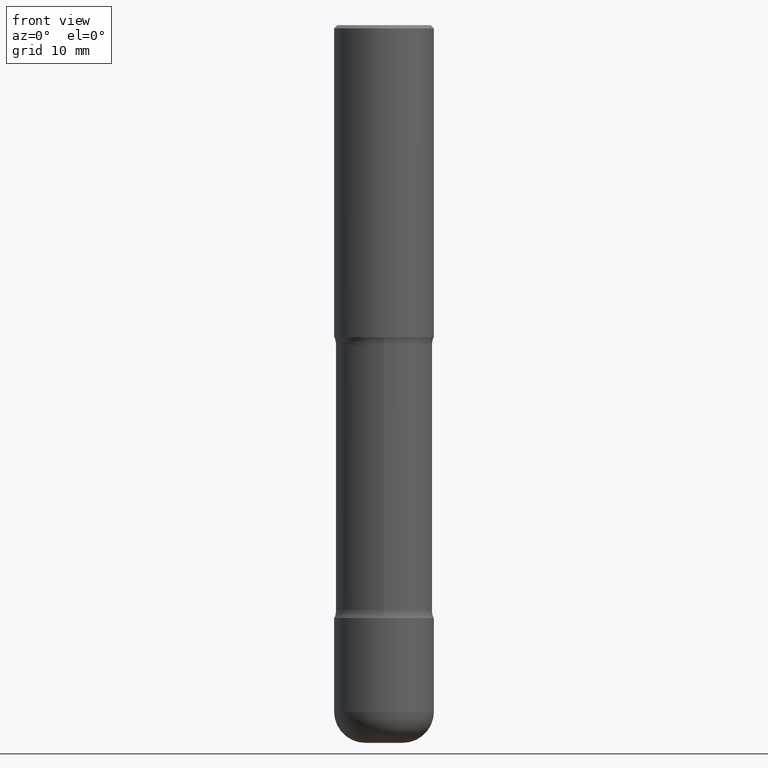
[diagram: clean part render]
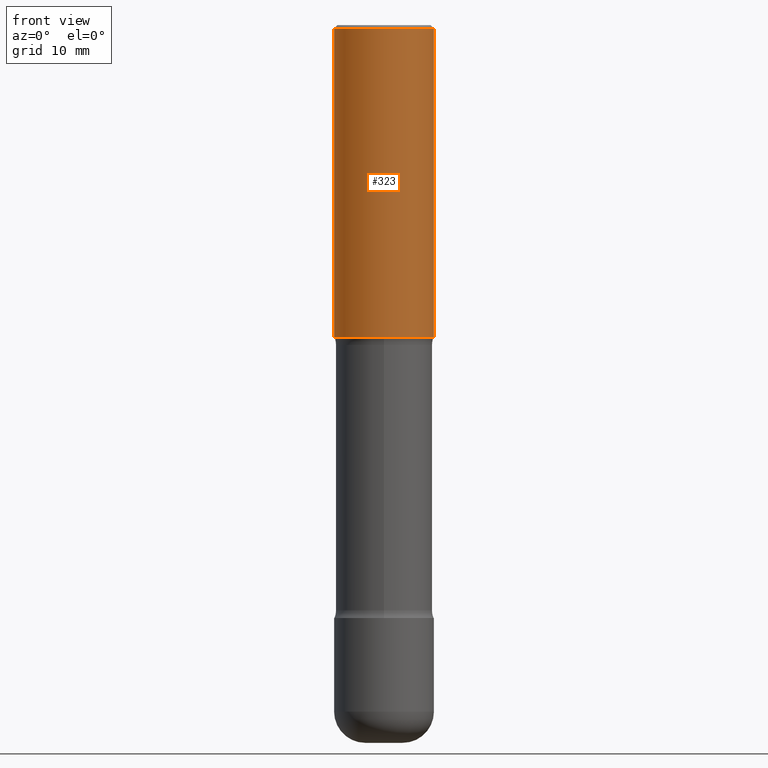
[diagram: same view with one face highlighted and labeled with its STEP entity id]
A machine part, front view. The second image highlights one B-rep face of the part: STEP entity #323.
In plain terms, the highlighted cylindrical surface (partial cylindrical patch) has radius 7.9997 mm, axis along (-0, 0, 1).
Its self-contained STEP definition (entity closure, byte-faithful):
#1 = CIRCLE ( 'NONE', #430, 0.3149500000000001743 ) ;
#23 = ORIENTED_EDGE ( 'NONE', *, *, #136, .T. ) ;
#43 = DIRECTION ( 'NONE',  ( -2.445468806185136597E-29, 3.491481338843145583E-15, 1.000000000000000000 ) ) ;
#65 = AXIS2_PLACEMENT_3D ( 'NONE', #184, #269, #187 ) ;
#72 = EDGE_CURVE ( 'NONE', #135, #142, #508, .T. ) ;
#80 = CARTESIAN_POINT ( 'NONE',  ( 0.3149499999999998967, -2.230543471175006266E-15, -0.02000000000000006981 ) ) ;
#104 = EDGE_LOOP ( 'NONE', ( #352, #23, #252, #264 ) ) ;
#107 = FACE_OUTER_BOUND ( 'NONE', #104, .T. ) ;
#118 = VERTEX_POINT ( 'NONE', #507 ) ;
#135 = VERTEX_POINT ( 'NONE', #202 ) ;
#136 = EDGE_CURVE ( 'NONE', #146, #118, #1, .T. ) ;
#142 = VERTEX_POINT ( 'NONE', #80 ) ;
#146 = VERTEX_POINT ( 'NONE', #382 ) ;
#165 = DIRECTION ( 'NONE',  ( 1.000000000000000000, -6.982962677686269866E-15, 0.000000000000000000 ) ) ;
#176 = EDGE_CURVE ( 'NONE', #118, #142, #206, .T. ) ;
#184 = CARTESIAN_POINT ( 'NONE',  ( 0.000000000000000000, 0.000000000000000000, 0.000000000000000000 ) ) ;
#187 = DIRECTION ( 'NONE',  ( 1.000000000000000000, -6.982962677686266711E-15, 4.876176775795936353E-29 ) ) ;
#202 = CARTESIAN_POINT ( 'NONE',  ( -0.3149499999999998967, 2.129454468560425784E-15, -0.02000000000000006981 ) ) ;
#206 = LINE ( 'NONE', #520, #270 ) ;
#221 = EDGE_CURVE ( 'NONE', #146, #135, #260, .T. ) ;
#252 = ORIENTED_EDGE ( 'NONE', *, *, #176, .T. ) ;
#258 = AXIS2_PLACEMENT_3D ( 'NONE', #560, #43, #300 ) ;
#260 = LINE ( 'NONE', #518, #380 ) ;
#264 = ORIENTED_EDGE ( 'NONE', *, *, #72, .F. ) ;
#269 = DIRECTION ( 'NONE',  ( -2.445468806185136597E-29, 3.491481338843145583E-15, 1.000000000000000000 ) ) ;
#270 = VECTOR ( 'NONE', #359, 39.37007874015748143 ) ;
#295 = CARTESIAN_POINT ( 'NONE',  ( 4.813905344975441835E-29, -6.872981015512731707E-15, -1.968500000000000139 ) ) ;
#300 = DIRECTION ( 'NONE',  ( 1.000000000000000000, -6.982962677686265922E-15, 0.000000000000000000 ) ) ;
#323 = ADVANCED_FACE ( 'NONE', ( #107 ), #358, .T. ) ;
#352 = ORIENTED_EDGE ( 'NONE', *, *, #221, .F. ) ;
#358 = CYLINDRICAL_SURFACE ( 'NONE', #65, 0.3149500000000000077 ) ;
#359 = DIRECTION ( 'NONE',  ( -2.445468806185136877E-29, 3.491481338843145188E-15, 1.000000000000000000 ) ) ;
#380 = VECTOR ( 'NONE', #440, 39.37007874015748143 ) ;
#382 = CARTESIAN_POINT ( 'NONE',  ( -0.3149500000000001743, -1.233550974868359743E-15, -1.968500000000000139 ) ) ;
#430 = AXIS2_PLACEMENT_3D ( 'NONE', #295, #467, #165 ) ;
#440 = DIRECTION ( 'NONE',  ( -2.445468806185136877E-29, 3.491481338843145188E-15, 1.000000000000000000 ) ) ;
#467 = DIRECTION ( 'NONE',  ( -2.445468806185136597E-29, 3.491481338843145583E-15, 1.000000000000000000 ) ) ;
#507 = CARTESIAN_POINT ( 'NONE',  ( 0.3149500000000001743, -9.072265110850023156E-15, -1.968500000000000139 ) ) ;
#508 = CIRCLE ( 'NONE', #258, 0.3149499999999998967 ) ;
#518 = CARTESIAN_POINT ( 'NONE',  ( -0.3149500000000000077, 2.237854346276435590E-15, -1.549218606675782676E-29 ) ) ;
#520 = CARTESIAN_POINT ( 'NONE',  ( 0.3149500000000000077, -2.199284095337289871E-15, 1.535751875536930130E-29 ) ) ;
#560 = CARTESIAN_POINT ( 'NONE',  ( 4.890937612370289799E-31, -6.982962677686315028E-17, -0.02000000000000006981 ) ) ;